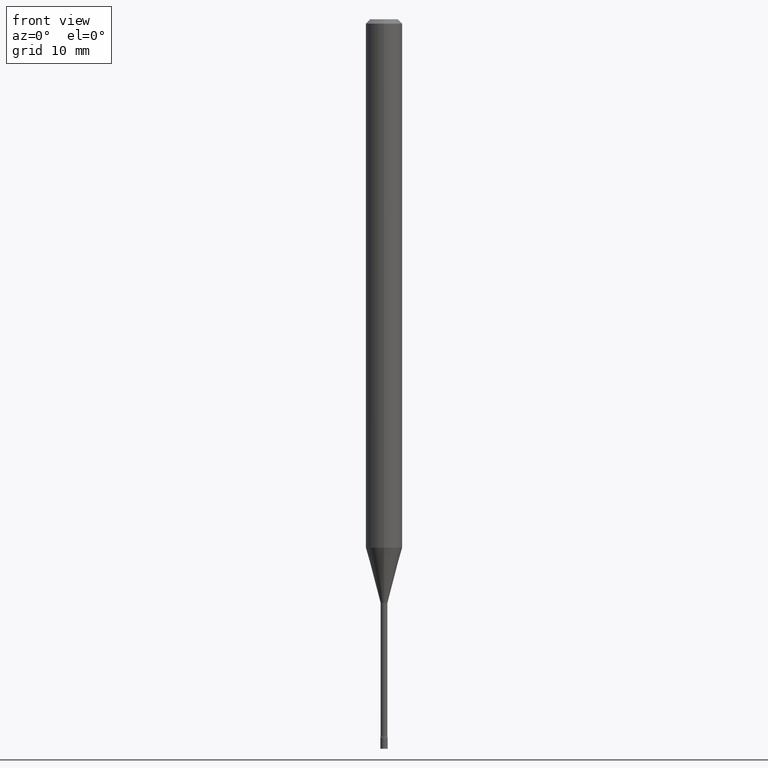
[diagram: clean part render]
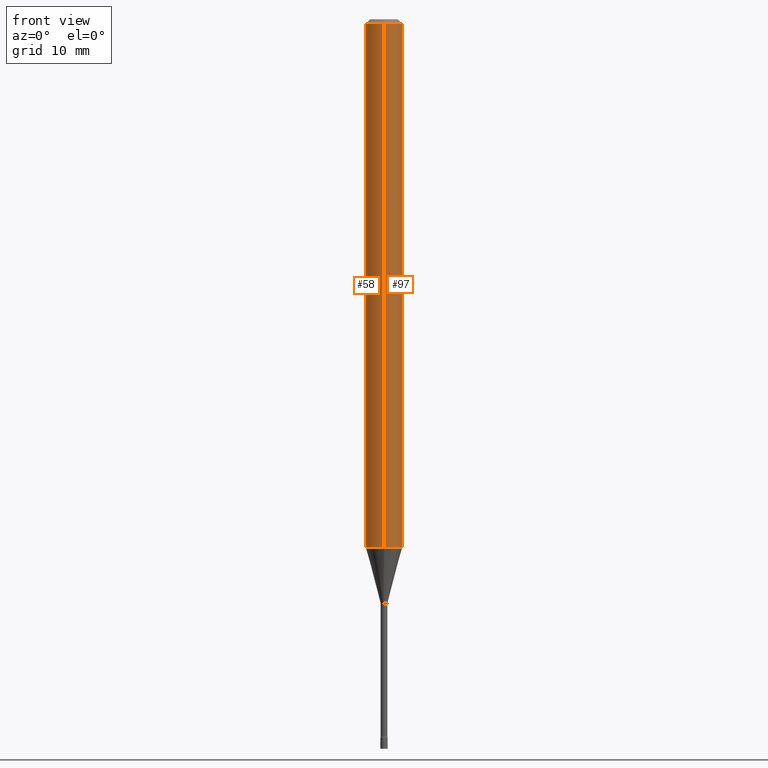
[diagram: same view with one multi-face feature highlighted, each face labeled with its STEP entity id]
A machine part, front view. The highlighted faces form ONE feature: a constant-radius fillet chain: 2 tangent blend faces with common blend radius 1.5875 mm. The faces share edges in the B-rep.
Their STEP definitions:
[1] entity #97 (Cylinder):
#9 = VERTEX_POINT ( 'NONE', #452 ) ;
#25 = LINE ( 'NONE', #188, #249 ) ;
#44 = ORIENTED_EDGE ( 'NONE', *, *, #337, .F. ) ;
#70 = CIRCLE ( 'NONE', #156, 0.06250000000000000000 ) ;
#97 = ADVANCED_FACE ( 'NONE', ( #306 ), #100, .T. ) ;
#100 = CYLINDRICAL_SURFACE ( 'NONE', #385, 0.06250000000000000000 ) ;
#138 = DIRECTION ( 'NONE',  ( -6.982962677686265922E-15, -1.000000000000000000, 4.370956789862821150E-15 ) ) ;
#140 = CARTESIAN_POINT ( 'NONE',  ( 4.427897988882776251E-29, -6.321475800253379253E-15, -1.810598421515879908 ) ) ;
#153 = DIRECTION ( 'NONE',  ( -6.982962677686265922E-15, -1.000000000000000000, 3.483106191921935554E-15 ) ) ;
#156 = AXIS2_PLACEMENT_3D ( 'NONE', #140, #418, #138 ) ;
#158 = EDGE_LOOP ( 'NONE', ( #255, #281, #364, #44 ) ) ;
#188 = CARTESIAN_POINT ( 'NONE',  ( 4.440892098500625669E-16, 0.06250000000000000000, -2.182108593605504032E-16 ) ) ;
#194 = EDGE_CURVE ( 'NONE', #211, #9, #283, .T. ) ;
#211 = VERTEX_POINT ( 'NONE', #431 ) ;
#224 = CARTESIAN_POINT ( 'NONE',  ( 0.000000000000000000, 0.000000000000000000, 0.000000000000000000 ) ) ;
#225 = DIRECTION ( 'NONE',  ( -2.445543935234200466E-29, 3.491373749768806451E-15, 1.000000000000000000 ) ) ;
#227 = CARTESIAN_POINT ( 'NONE',  ( -4.364351673553916201E-16, -0.06250000000000000000, 2.182108593605504032E-16 ) ) ;
#232 = CARTESIAN_POINT ( 'NONE',  ( 3.668315902851307968E-31, -5.237060624653220720E-17, -0.01500000000000003067 ) ) ;
#242 = VERTEX_POINT ( 'NONE', #517 ) ;
#249 = VECTOR ( 'NONE', #509, 39.37007874015748143 ) ;
#250 = EDGE_CURVE ( 'NONE', #242, #9, #25, .T. ) ;
#255 = ORIENTED_EDGE ( 'NONE', *, *, #351, .T. ) ;
#256 = DIRECTION ( 'NONE',  ( -6.982962677686265922E-15, -1.000000000000000000, 3.491373749768806451E-15 ) ) ;
#281 = ORIENTED_EDGE ( 'NONE', *, *, #250, .T. ) ;
#283 = CIRCLE ( 'NONE', #301, 0.06250000000000000000 ) ;
#301 = AXIS2_PLACEMENT_3D ( 'NONE', #232, #392, #153 ) ;
#306 = FACE_OUTER_BOUND ( 'NONE', #158, .T. ) ;
#307 = DIRECTION ( 'NONE',  ( -2.445543935234200466E-29, 3.491373749768806056E-15, 1.000000000000000000 ) ) ;
#337 = EDGE_CURVE ( 'NONE', #359, #211, #453, .T. ) ;
#351 = EDGE_CURVE ( 'NONE', #359, #242, #70, .T. ) ;
#359 = VERTEX_POINT ( 'NONE', #387 ) ;
#364 = ORIENTED_EDGE ( 'NONE', *, *, #194, .F. ) ;
#385 = AXIS2_PLACEMENT_3D ( 'NONE', #224, #225, #256 ) ;
#387 = CARTESIAN_POINT ( 'NONE',  ( -4.364351673553473946E-16, -0.06250000000000632827, -1.810598421515879464 ) ) ;
#392 = DIRECTION ( 'NONE',  ( -2.445543935234200466E-29, 3.491373749768806451E-15, 1.000000000000000000 ) ) ;
#418 = DIRECTION ( 'NONE',  ( -2.445543935234200466E-29, 3.491373749768806451E-15, 1.000000000000000000 ) ) ;
#427 = VECTOR ( 'NONE', #307, 39.37007874015748143 ) ;
#431 = CARTESIAN_POINT ( 'NONE',  ( -4.364351673553912750E-16, -0.06250000000000005551, -0.01499999999999981209 ) ) ;
#452 = CARTESIAN_POINT ( 'NONE',  ( 4.440892098501070882E-16, 0.06249999999999995143, -0.01500000000000024751 ) ) ;
#453 = LINE ( 'NONE', #227, #427 ) ;
#509 = DIRECTION ( 'NONE',  ( -2.445543935234200466E-29, 3.491373749768806056E-15, 1.000000000000000000 ) ) ;
#517 = CARTESIAN_POINT ( 'NONE',  ( 4.440892098501067924E-16, 0.06249999999999367867, -1.810598421515880130 ) ) ;
[2] entity #58 (Cylinder):
#3 = AXIS2_PLACEMENT_3D ( 'NONE', #336, #297, #502 ) ;
#9 = VERTEX_POINT ( 'NONE', #452 ) ;
#25 = LINE ( 'NONE', #188, #249 ) ;
#48 = DIRECTION ( 'NONE',  ( -2.445543935234200466E-29, 3.491373749768806451E-15, 1.000000000000000000 ) ) ;
#57 = FACE_OUTER_BOUND ( 'NONE', #490, .T. ) ;
#58 = ADVANCED_FACE ( 'NONE', ( #57 ), #132, .T. ) ;
#113 = EDGE_CURVE ( 'NONE', #242, #359, #332, .T. ) ;
#114 = EDGE_CURVE ( 'NONE', #9, #211, #484, .T. ) ;
#116 = ORIENTED_EDGE ( 'NONE', *, *, #113, .T. ) ;
#132 = CYLINDRICAL_SURFACE ( 'NONE', #397, 0.06250000000000000000 ) ;
#177 = DIRECTION ( 'NONE',  ( -6.982962677686265922E-15, -1.000000000000000000, 3.491373749768806451E-15 ) ) ;
#180 = DIRECTION ( 'NONE',  ( -2.445543935234200466E-29, 3.491373749768806451E-15, 1.000000000000000000 ) ) ;
#188 = CARTESIAN_POINT ( 'NONE',  ( 4.440892098500625669E-16, 0.06250000000000000000, -2.182108593605504032E-16 ) ) ;
#211 = VERTEX_POINT ( 'NONE', #431 ) ;
#227 = CARTESIAN_POINT ( 'NONE',  ( -4.364351673553916201E-16, -0.06250000000000000000, 2.182108593605504032E-16 ) ) ;
#235 = AXIS2_PLACEMENT_3D ( 'NONE', #377, #48, #413 ) ;
#242 = VERTEX_POINT ( 'NONE', #517 ) ;
#249 = VECTOR ( 'NONE', #509, 39.37007874015748143 ) ;
#250 = EDGE_CURVE ( 'NONE', #242, #9, #25, .T. ) ;
#297 = DIRECTION ( 'NONE',  ( -2.445543935234200466E-29, 3.491373749768806451E-15, 1.000000000000000000 ) ) ;
#307 = DIRECTION ( 'NONE',  ( -2.445543935234200466E-29, 3.491373749768806056E-15, 1.000000000000000000 ) ) ;
#331 = CARTESIAN_POINT ( 'NONE',  ( 0.000000000000000000, 0.000000000000000000, 0.000000000000000000 ) ) ;
#332 = CIRCLE ( 'NONE', #3, 0.06250000000000000000 ) ;
#336 = CARTESIAN_POINT ( 'NONE',  ( 4.427897988882776251E-29, -6.321475800253379253E-15, -1.810598421515879908 ) ) ;
#337 = EDGE_CURVE ( 'NONE', #359, #211, #453, .T. ) ;
#359 = VERTEX_POINT ( 'NONE', #387 ) ;
#360 = ORIENTED_EDGE ( 'NONE', *, *, #250, .F. ) ;
#377 = CARTESIAN_POINT ( 'NONE',  ( 3.668315902851307968E-31, -5.237060624653220720E-17, -0.01500000000000003067 ) ) ;
#387 = CARTESIAN_POINT ( 'NONE',  ( -4.364351673553473946E-16, -0.06250000000000632827, -1.810598421515879464 ) ) ;
#397 = AXIS2_PLACEMENT_3D ( 'NONE', #331, #180, #177 ) ;
#413 = DIRECTION ( 'NONE',  ( -6.982962677686265922E-15, -1.000000000000000000, 3.483106191921935554E-15 ) ) ;
#427 = VECTOR ( 'NONE', #307, 39.37007874015748143 ) ;
#431 = CARTESIAN_POINT ( 'NONE',  ( -4.364351673553912750E-16, -0.06250000000000005551, -0.01499999999999981209 ) ) ;
#452 = CARTESIAN_POINT ( 'NONE',  ( 4.440892098501070882E-16, 0.06249999999999995143, -0.01500000000000024751 ) ) ;
#453 = LINE ( 'NONE', #227, #427 ) ;
#484 = CIRCLE ( 'NONE', #235, 0.06250000000000000000 ) ;
#485 = ORIENTED_EDGE ( 'NONE', *, *, #114, .F. ) ;
#487 = ORIENTED_EDGE ( 'NONE', *, *, #337, .T. ) ;
#490 = EDGE_LOOP ( 'NONE', ( #360, #116, #487, #485 ) ) ;
#502 = DIRECTION ( 'NONE',  ( -6.982962677686265922E-15, -1.000000000000000000, 4.370956789862821150E-15 ) ) ;
#509 = DIRECTION ( 'NONE',  ( -2.445543935234200466E-29, 3.491373749768806056E-15, 1.000000000000000000 ) ) ;
#517 = CARTESIAN_POINT ( 'NONE',  ( 4.440892098501067924E-16, 0.06249999999999367867, -1.810598421515880130 ) ) ;